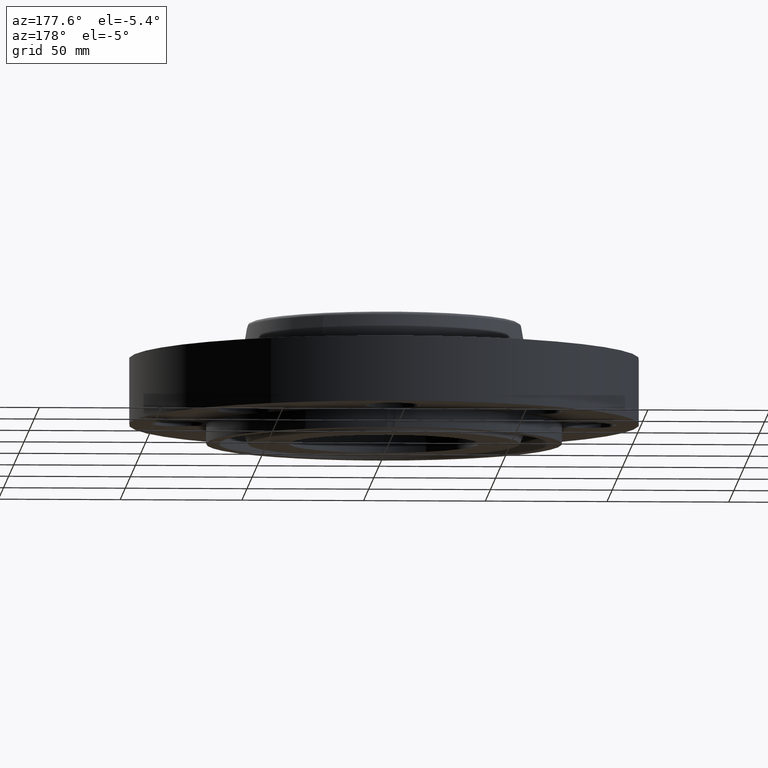
[diagram: clean part render]
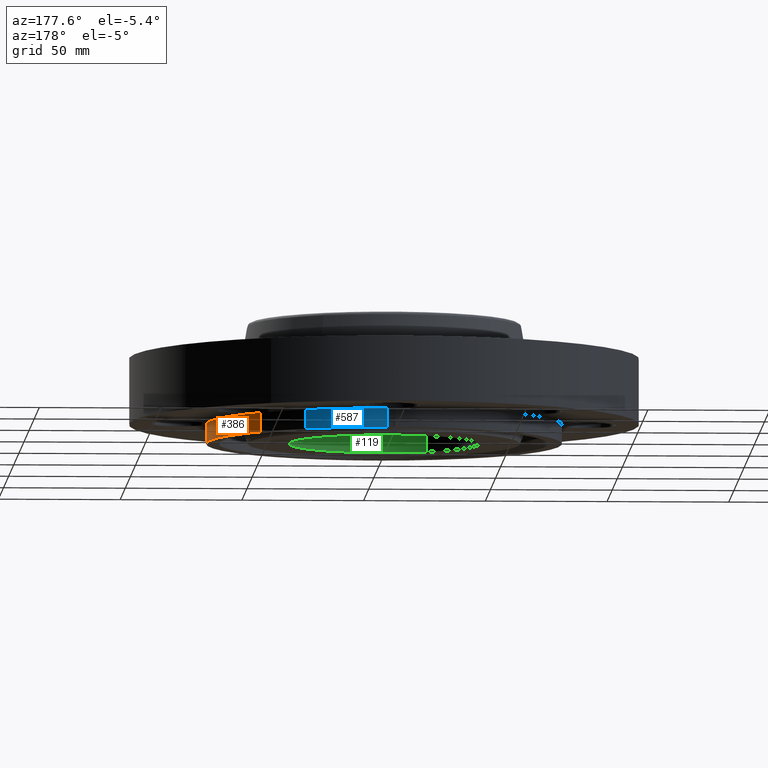
[diagram: same view with three faces highlighted in distinct colors, each labeled with its STEP entity id]
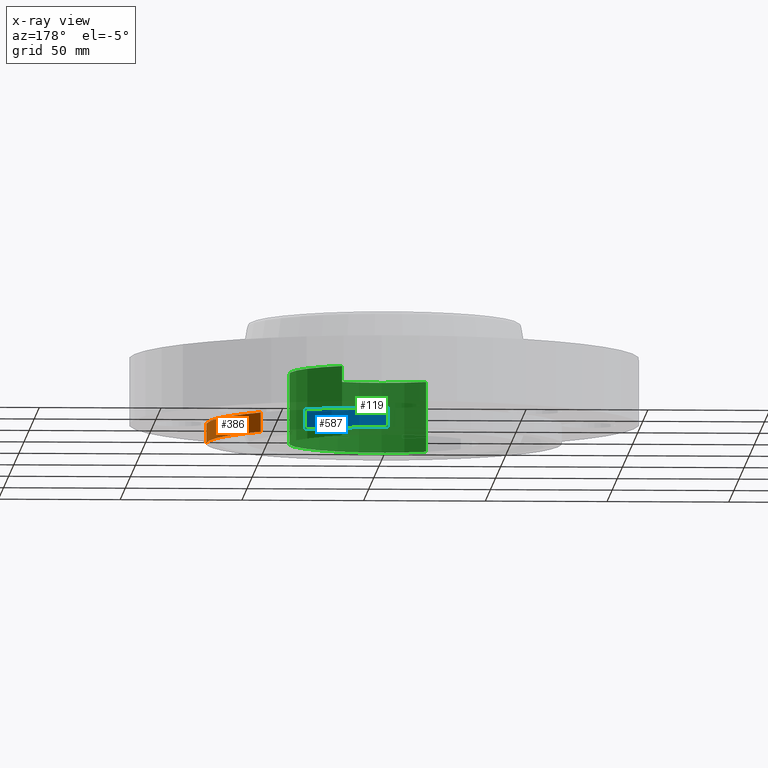
[diagram: x-ray of the same camera — body ghosted, the three highlighted faces saturated]
A machine part, auxiliary view with three faces highlighted in distinct colors.
The next image is the same camera in x-ray (body ghosted, the three faces saturated) — at least one of them is partly hidden behind the body in this view.
Their STEP definitions:

[orange] entity #386 — the highlighted cylindrical surface (partial cylindrical patch) has radius 73.025 mm, axis along (0, 0, -1).
#193=AXIS2_PLACEMENT_3D('Circle Axis2P3D',#191,#192,$) ;
#359=AXIS2_PLACEMENT_3D('Cylinder Axis2P3D',#356,#357,#358) ;
#363=AXIS2_PLACEMENT_3D('Circle Axis2P3D',#361,#362,$) ;
#191=CARTESIAN_POINT('Axis2P3D Location',(0.,0.,-0.313000000001)) ;
#195=CARTESIAN_POINT('Vertex',(2.07605138692,1.98887798493,-0.313000000001)) ;
#197=CARTESIAN_POINT('Vertex',(2.87433912388,0.0616409036851,-0.313000000001)) ;
#356=CARTESIAN_POINT('Axis2P3D Location',(0.,0.,0.658500000003)) ;
#361=CARTESIAN_POINT('Axis2P3D Location',(0.,0.,2.79741234551E-016)) ;
#365=CARTESIAN_POINT('Vertex',(2.07605138692,1.98887798493,2.79741234551E-016)) ;
#367=CARTESIAN_POINT('Vertex',(2.87433912388,0.0616409036851,2.79741234551E-016)) ;
#370=CARTESIAN_POINT('Line Origine',(2.87433912388,0.0616409036851,-0.156500000001)) ;
#375=CARTESIAN_POINT('Line Origine',(2.07605138692,1.98887798493,-0.156500000001)) ;
#192=DIRECTION('Axis2P3D Direction',(0.,0.,-0.0393700787402)) ;
#357=DIRECTION('Axis2P3D Direction',(0.,0.,-0.0393700787402)) ;
#358=DIRECTION('Axis2P3D XDirection',(0.0188750212049,0.0345504945626,0.)) ;
#362=DIRECTION('Axis2P3D Direction',(0.,0.,-0.0393700787402)) ;
#371=DIRECTION('Vector Direction',(0.,0.,-0.0393700787402)) ;
#376=DIRECTION('Vector Direction',(0.,0.,-0.0393700787402)) ;
#372=VECTOR('Line Direction',#371,0.0393700787402) ;
#377=VECTOR('Line Direction',#376,0.0393700787402) ;
#381=ORIENTED_EDGE('',*,*,#369,.T.) ;
#382=ORIENTED_EDGE('',*,*,#374,.T.) ;
#383=ORIENTED_EDGE('',*,*,#199,.F.) ;
#384=ORIENTED_EDGE('',*,*,#379,.F.) ;
#386=ADVANCED_FACE('PartBody',(#385),#360,.T.) ;
#194=CIRCLE('generated circle',#193,2.87500000001) ;
#364=CIRCLE('generated circle',#363,2.87500000001) ;
#360=CYLINDRICAL_SURFACE('generated cylinder',#359,2.87500000001) ;
#199=EDGE_CURVE('',#196,#198,#194,.T.) ;
#369=EDGE_CURVE('',#366,#368,#364,.T.) ;
#374=EDGE_CURVE('',#368,#198,#373,.T.) ;
#379=EDGE_CURVE('',#366,#196,#378,.T.) ;
#380=EDGE_LOOP('',(#381,#382,#383,#384)) ;
#385=FACE_OUTER_BOUND('',#380,.T.) ;
#373=LINE('Line',#370,#372) ;
#378=LINE('Line',#375,#377) ;
#196=VERTEX_POINT('',#195) ;
#198=VERTEX_POINT('',#197) ;
#366=VERTEX_POINT('',#365) ;
#368=VERTEX_POINT('',#367) ;

[blue] entity #587 — the highlighted cylindrical surface (partial cylindrical patch) has radius 73.025 mm, axis along (0, 0, -1).
#300=AXIS2_PLACEMENT_3D('Circle Axis2P3D',#298,#299,$) ;
#359=AXIS2_PLACEMENT_3D('Cylinder Axis2P3D',#356,#357,#358) ;
#564=AXIS2_PLACEMENT_3D('Circle Axis2P3D',#562,#563,$) ;
#295=CARTESIAN_POINT('Vertex',(0.0616409036851,2.87433912388,-0.313000000001)) ;
#298=CARTESIAN_POINT('Axis2P3D Location',(0.,0.,-0.313000000001)) ;
#302=CARTESIAN_POINT('Vertex',(1.37834842349,2.52304986544,-0.313000000001)) ;
#356=CARTESIAN_POINT('Axis2P3D Location',(0.,0.,0.658500000003)) ;
#562=CARTESIAN_POINT('Axis2P3D Location',(0.,0.,2.79741234551E-016)) ;
#566=CARTESIAN_POINT('Vertex',(0.0616409036851,2.87433912388,2.79741234551E-016)) ;
#568=CARTESIAN_POINT('Vertex',(1.37834842349,2.52304986544,2.79741234551E-016)) ;
#571=CARTESIAN_POINT('Line Origine',(1.37834842349,2.52304986544,-0.156500000001)) ;
#576=CARTESIAN_POINT('Line Origine',(0.0616409036851,2.87433912388,-0.156500000001)) ;
#299=DIRECTION('Axis2P3D Direction',(0.,0.,-0.0393700787402)) ;
#357=DIRECTION('Axis2P3D Direction',(0.,0.,-0.0393700787402)) ;
#358=DIRECTION('Axis2P3D XDirection',(0.0188750212049,0.0345504945626,0.)) ;
#563=DIRECTION('Axis2P3D Direction',(0.,0.,-0.0393700787402)) ;
#572=DIRECTION('Vector Direction',(0.,0.,-0.0393700787402)) ;
#577=DIRECTION('Vector Direction',(0.,0.,-0.0393700787402)) ;
#573=VECTOR('Line Direction',#572,0.0393700787402) ;
#578=VECTOR('Line Direction',#577,0.0393700787402) ;
#582=ORIENTED_EDGE('',*,*,#570,.T.) ;
#583=ORIENTED_EDGE('',*,*,#575,.F.) ;
#584=ORIENTED_EDGE('',*,*,#304,.F.) ;
#585=ORIENTED_EDGE('',*,*,#580,.F.) ;
#587=ADVANCED_FACE('PartBody',(#586),#360,.T.) ;
#301=CIRCLE('generated circle',#300,2.87500000001) ;
#565=CIRCLE('generated circle',#564,2.87500000001) ;
#360=CYLINDRICAL_SURFACE('generated cylinder',#359,2.87500000001) ;
#304=EDGE_CURVE('',#296,#303,#301,.T.) ;
#570=EDGE_CURVE('',#567,#569,#565,.T.) ;
#575=EDGE_CURVE('',#303,#569,#574,.F.) ;
#580=EDGE_CURVE('',#567,#296,#579,.T.) ;
#581=EDGE_LOOP('',(#582,#583,#584,#585)) ;
#586=FACE_OUTER_BOUND('',#581,.T.) ;
#574=LINE('Line',#571,#573) ;
#579=LINE('Line',#576,#578) ;
#296=VERTEX_POINT('',#295) ;
#303=VERTEX_POINT('',#302) ;
#567=VERTEX_POINT('',#566) ;
#569=VERTEX_POINT('',#568) ;

[green] entity #119 — the highlighted cylindrical surface (partial cylindrical patch) has radius 38.9636 mm, axis along (0, 0, -1).
#60=AXIS2_PLACEMENT_3D('Circle Axis2P3D',#58,#59,$) ;
#80=AXIS2_PLACEMENT_3D('Cylinder Axis2P3D',#77,#78,#79) ;
#110=AXIS2_PLACEMENT_3D('Circle Axis2P3D',#108,#109,$) ;
#58=CARTESIAN_POINT('Axis2P3D Location',(3.84644197508E-016,-3.49676543189E-017,0.820000000003)) ;
#62=CARTESIAN_POINT('Vertex',(0.735438776222,1.34621164995,0.820000000003)) ;
#64=CARTESIAN_POINT('Vertex',(-0.735438776222,-1.34621164995,0.820000000003)) ;
#77=CARTESIAN_POINT('Axis2P3D Location',(0.,0.,0.658500000003)) ;
#82=CARTESIAN_POINT('Line Origine',(-0.735438776222,-1.34621164995,0.253500000001)) ;
#86=CARTESIAN_POINT('Vertex',(-0.735438776222,-1.34621164995,-0.313000000001)) ;
#93=CARTESIAN_POINT('Vertex',(0.735438776222,1.34621164995,-0.313000000001)) ;
#96=CARTESIAN_POINT('Line Origine',(0.735438776222,1.34621164995,0.253500000001)) ;
#108=CARTESIAN_POINT('Axis2P3D Location',(0.,0.,-0.313000000001)) ;
#59=DIRECTION('Axis2P3D Direction',(0.,0.,-0.0393700787402)) ;
#78=DIRECTION('Axis2P3D Direction',(0.,0.,-0.0393700787402)) ;
#79=DIRECTION('Axis2P3D XDirection',(0.0188750212049,0.0345504945626,0.)) ;
#83=DIRECTION('Vector Direction',(0.,0.,-0.0393700787402)) ;
#97=DIRECTION('Vector Direction',(0.,0.,-0.0393700787402)) ;
#109=DIRECTION('Axis2P3D Direction',(0.,0.,-0.0393700787402)) ;
#84=VECTOR('Line Direction',#83,0.0393700787402) ;
#98=VECTOR('Line Direction',#97,0.0393700787402) ;
#114=ORIENTED_EDGE('',*,*,#100,.T.) ;
#115=ORIENTED_EDGE('',*,*,#112,.T.) ;
#116=ORIENTED_EDGE('',*,*,#88,.F.) ;
#117=ORIENTED_EDGE('',*,*,#66,.F.) ;
#119=ADVANCED_FACE('PartBody',(#118),#81,.F.) ;
#61=CIRCLE('generated circle',#60,1.53400000001) ;
#111=CIRCLE('generated circle',#110,1.53400000001) ;
#81=CYLINDRICAL_SURFACE('generated cylinder',#80,1.53400000001) ;
#66=EDGE_CURVE('',#63,#65,#61,.T.) ;
#88=EDGE_CURVE('',#65,#87,#85,.T.) ;
#100=EDGE_CURVE('',#63,#94,#99,.T.) ;
#112=EDGE_CURVE('',#94,#87,#111,.T.) ;
#113=EDGE_LOOP('',(#114,#115,#116,#117)) ;
#118=FACE_OUTER_BOUND('',#113,.T.) ;
#85=LINE('Line',#82,#84) ;
#99=LINE('Line',#96,#98) ;
#63=VERTEX_POINT('',#62) ;
#65=VERTEX_POINT('',#64) ;
#87=VERTEX_POINT('',#86) ;
#94=VERTEX_POINT('',#93) ;